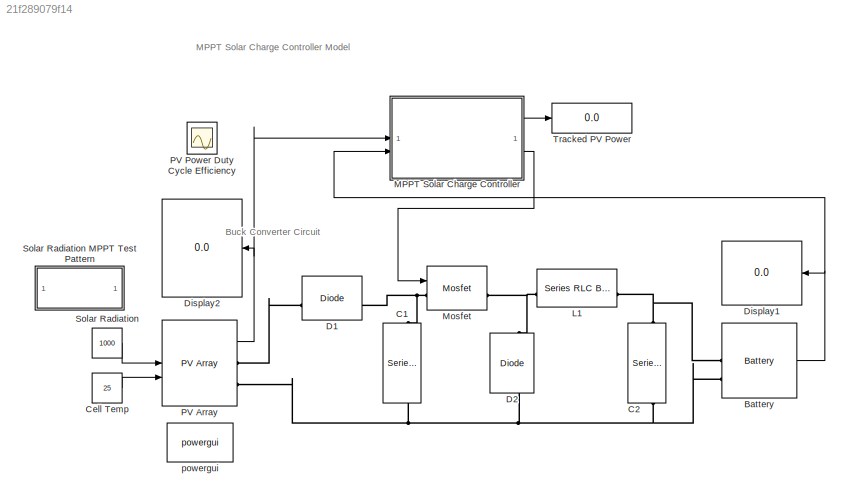
MODEL slx_21f289079f14
KIND model
CONFIG AbsTol = auto
CONFIG EnableMultiTasking = off
CONFIG FixedStep = 1
CONFIG MaxStep = auto
CONFIG MinStep = auto
CONFIG RelTol = 1e-3
CONFIG SampleTimeConstraint = Unconstrained
CONFIG SolverName = ode23tb
CONFIG StartTime = 0.0
CONFIG StopTime = 2
BLOCK [Reference]  C2  REF=spsSeriesRLCBranchLib/Series RLC Branch
  LibrarySourceBlock = sps_lib/Passives/Series RLC Branch
  NameLocation = left
  SourceBlock = spsSeriesRLCBranchLib/Series RLC Branch
  SourceType = Series RLC Branch
BLOCK [Reference] Battery  REF=spsBatteryLib/Battery
  LibrarySourceBlock = electricdrivelib/Extra Sources/Battery
  SourceBlock = spsBatteryLib/Battery
  SourceType = Battery
BLOCK [Reference] C1  REF=spsSeriesRLCBranchLib/Series RLC Branch
  LibrarySourceBlock = sps_lib/Passives/Series RLC Branch
  NameLocation = left
  SourceBlock = spsSeriesRLCBranchLib/Series RLC Branch
  SourceType = Series RLC Branch
BLOCK [Constant] Cell Temp
  Value = 25
BLOCK [Reference] D1  REF=spsDiodeLib/Diode
  LibrarySourceBlock = sps_lib/Power Electronics/Diode
  NameLocation = top
  SourceBlock = spsDiodeLib/Diode
  SourceType = Diode
BLOCK [Reference] D2  REF=spsDiodeLib/Diode
  LibrarySourceBlock = sps_lib/Power Electronics/Diode
  NameLocation = right
  SourceBlock = spsDiodeLib/Diode
  SourceType = Diode
BLOCK [Display] Display1
  Decimation = 1
BLOCK [Display] Display2
  Decimation = 1
BLOCK [Reference] L1  REF=spsSeriesRLCBranchLib/Series RLC Branch
  LibrarySourceBlock = sps_lib/Passives/Series RLC Branch
  NameLocation = top
  SourceBlock = spsSeriesRLCBranchLib/Series RLC Branch
  SourceType = Series RLC Branch
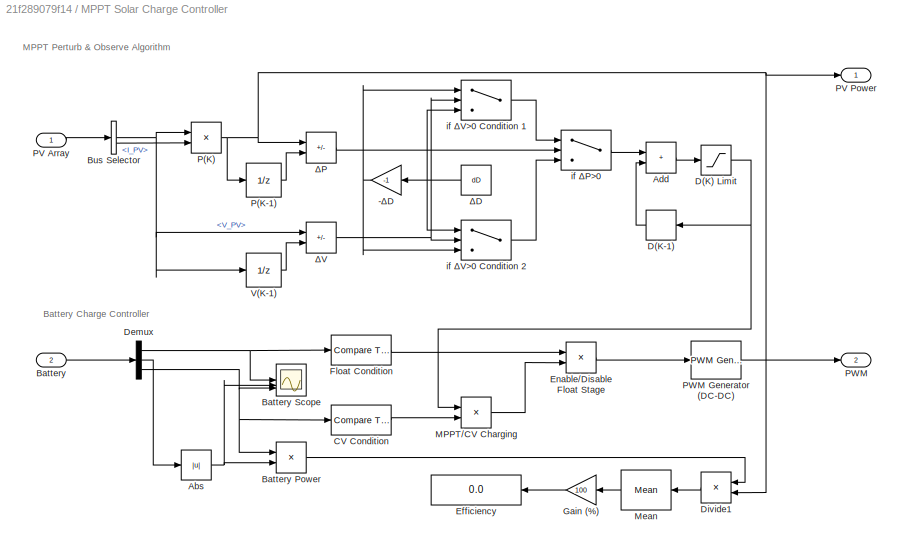
BLOCK [SubSystem] MPPT Solar Charge Controller
BLOCK [Gain] MPPT Solar Charge Controller/-∆D
  Gain = -1
BLOCK [Abs] MPPT Solar Charge Controller/Abs
  SaturateOnIntegerOverflow = off
BLOCK [Sum] MPPT Solar Charge Controller/Add
  IconShape = rectangular
BLOCK [Inport] MPPT Solar Charge Controller/Battery
  Port = 2
BLOCK [Product] MPPT Solar Charge Controller/Battery Power
BLOCK [Scope] MPPT Solar Charge Controller/Battery Scope
  Floating = off
  NumInputPorts = 3
  ScopeSpecificationString = Simulink.scopes.TimeScopeBlockCfg('CurrentConfiguration', extmgr.ConfigurationSet(extmgr.Configuration('Core','General UI',true),extmgr.Configuration('Core','Source UI',true),extmgr.Configuration('Sources','WiredSimulink',true,'DataLoggingVariableName','BatteryScope','DataLogging',true,'DataLoggingSaveFormat','Structure'),extmgr.Configuration('Visuals','Time Domain',true,'SerializedDisplays',{stru...<+2724ch>
BLOCK [BusSelector] MPPT Solar Charge Controller/Bus Selector
  OutputSignals = V_PV,I_PV
BLOCK [Reference] MPPT Solar Charge Controller/CV Condition  REF=simulink/Logic and Bit
Operations/Compare
To Constant
  SourceBlock = simulink/Logic and Bit\nOperations/Compare\nTo Constant
  SourceType = Compare To Constant
BLOCK [Saturate] MPPT Solar Charge Controller/D(K) Limit
  LowerLimit = 0.4
  UpperLimit = 0.6
BLOCK [Memory] MPPT Solar Charge Controller/D(K-1)
  InheritSampleTime = on
  InitialCondition = 0.5
  LinearizeAsDelay = on
  LinearizeMemory = on
BLOCK [Demux] MPPT Solar Charge Controller/Demux
  Outputs = 3
BLOCK [Product] MPPT Solar Charge Controller/Divide1
  Inputs = */
BLOCK [Display] MPPT Solar Charge Controller/Efficiency
  Decimation = 1
BLOCK [Product] MPPT Solar Charge Controller/Enable//Disable Float Stage
BLOCK [Reference] MPPT Solar Charge Controller/Float Condition  REF=simulink/Logic and Bit
Operations/Compare
To Constant
  SourceBlock = simulink/Logic and Bit\nOperations/Compare\nTo Constant
  SourceType = Compare To Constant
BLOCK [Gain] MPPT Solar Charge Controller/Gain (%)
  Gain = 100
BLOCK [Product] MPPT Solar Charge Controller/MPPT//CV Charging
BLOCK [Reference] MPPT Solar Charge Controller/Mean  REF=spsMeanLib/Mean
  LibrarySourceBlock = sps_lib/Sensors and Measurements/Mean
  SourceBlock = spsMeanLib/Mean
  SourceType = Mean
BLOCK [Product] MPPT Solar Charge Controller/P(K)
BLOCK [UnitDelay] MPPT Solar Charge Controller/P(K-1)
  HasFrameUpgradeWarning = on
  SampleTime = -1
BLOCK [Inport] MPPT Solar Charge Controller/PV Array
BLOCK [Outport] MPPT Solar Charge Controller/PV Power
  VectorParamsAs1DForOutWhenUnconnected = off
BLOCK [Outport] MPPT Solar Charge Controller/PWM
  Port = 2
  VectorParamsAs1DForOutWhenUnconnected = off
BLOCK [Reference] MPPT Solar Charge Controller/PWM Generator (DC-DC)  REF=spsPWMGeneratorDCDCLib/PWM Generator
(DC-DC)
  LibrarySourceBlock = sps_lib/Power Electronics/Power Electronics Control/PWM Generator\n(DC-DC)
  SourceBlock = spsPWMGeneratorDCDCLib/PWM Generator\n(DC-DC)
  SourceType = PWM Generator (DC-DC)
BLOCK [UnitDelay] MPPT Solar Charge Controller/V(K-1)
  HasFrameUpgradeWarning = on
  SampleTime = -1
BLOCK [Switch] MPPT Solar Charge Controller/if ∆P>0
  Criteria = u2 > Threshold
  InputSameDT = off
  SaturateOnIntegerOverflow = off
BLOCK [Switch] MPPT Solar Charge Controller/if ∆V>0 Condition 1
  Criteria = u2 > Threshold
  InputSameDT = off
  SaturateOnIntegerOverflow = off
BLOCK [Switch] MPPT Solar Charge Controller/if ∆V>0 Condition 2
  Criteria = u2 > Threshold
  InputSameDT = off
  SaturateOnIntegerOverflow = off
BLOCK [Constant] MPPT Solar Charge Controller/∆D
  Value = dD
BLOCK [Sum] MPPT Solar Charge Controller/∆P
  IconShape = rectangular
  Inputs = +-
BLOCK [Sum] MPPT Solar Charge Controller/∆V
  IconShape = rectangular
  Inputs = +-
BLOCK [Reference] Mosfet  REF=spsMosfetLib/Mosfet
  LibrarySourceBlock = sps_lib/Power Electronics/Mosfet
  SourceBlock = spsMosfetLib/Mosfet
  SourceType = Mosfet
BLOCK [Reference] PV Array  REF=spsPVArrayLib/PV Array
  LibrarySourceBlock = sps_lib/Sources/PV Array
  SourceBlock = spsPVArrayLib/PV Array
  SourceType = PV array
BLOCK [Scope] PV Power Duty Cycle Efficiency
  Floating = on
  NumInputPorts = 1
  ScopeSpecificationString = Simulink.scopes.TimeScopeBlockCfg('CurrentConfiguration', extmgr.ConfigurationSet(extmgr.Configuration('Core','General UI',true),extmgr.Configuration('Core','Source UI',true),extmgr.Configuration('Sources','WiredSimulink',true,'DataLoggingVariableName','ScopeData1'),extmgr.Configuration('Visuals','Time Domain',true,'SerializedDisplays',{struct('MinYLimReal','-248.342','MaxYLimReal','2254.85954','Y...<+2733ch>
BLOCK [Constant] Solar Radiation
  Value = 1000
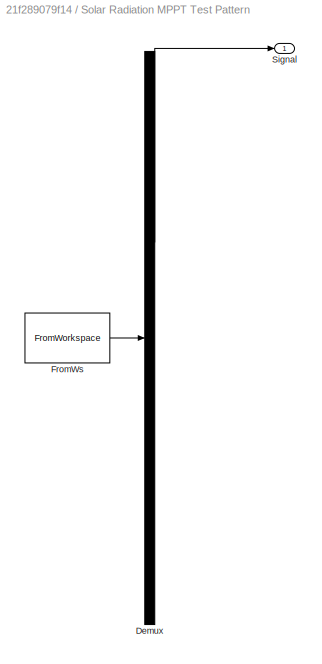
BLOCK [SubSystem] Solar Radiation MPPT Test Pattern
  ClipboardFcn = sigbuilder_block('clipboard');
  CloseFcn = sigbuilder_block('close');
  ContinueFcn = sigbuilder_block('continue');
  CopyFcn = sigbuilder_block('copy');
  DeleteFcn = sigbuilder_block('delete');
  LoadFcn = sigbuilder_block('load');
  MaskHideContents = on
  ModelCloseFcn = sigbuilder_block('modelClose');
  NameChangeFcn = sigbuilder_block('namechange');
  NameLocation = top
  OpenFcn = sigbuilder_block('open',[330.75 60 648.75 359.25 ]);
  PauseFcn = sigbuilder_block('pause');
  PreSaveFcn = sigbuilder_block('preSave');
  StartFcn = sigbuilder_block('start');
  StopFcn = sigbuilder_block('stop');
  Tag = STV Subsys
BLOCK [Demux] Solar Radiation MPPT Test Pattern/Demux
  DisplayOption = none
  Outputs = 1
  Tag = STV Demux
BLOCK [FromWorkspace] Solar Radiation MPPT Test Pattern/FromWs
  Tag = STV FromWs
  VariableName = tuvar
BLOCK [Outport] Solar Radiation MPPT Test Pattern/Signal
  Tag = STV Outport
  VectorParamsAs1DForOutWhenUnconnected = off
BLOCK [Display] Tracked PV Power
  Decimation = 1
BLOCK [Reference] powergui  REF=sps_lib/powergui
  Priority = 1
  SourceBlock = sps_lib/powergui
  SourceType = PSB option menu block
ANNOTATION (root): Buck Converter Circuit
ANNOTATION (root): MPPT Solar Charge Controller Model
ANNOTATION MPPT Solar Charge Controller: Battery Charge Controller
ANNOTATION MPPT Solar Charge Controller: MPPT Perturb & Observe Algorithm
NET Battery:1 -> Display1:1, MPPT Solar Charge Controller:2
LINE Cell Temp:1 -> PV Array:2
NET MPPT Solar Charge Controller/-∆D:1 -> MPPT Solar Charge Controller/if ∆V>0 Condition 1:1, MPPT Solar Charge Controller/if ∆V>0 Condition 2:3
NET MPPT Solar Charge Controller/Abs:1 -> MPPT Solar Charge Controller/Battery Power:2, MPPT Solar Charge Controller/Battery Scope:2
LINE MPPT Solar Charge Controller/Add:1 -> MPPT Solar Charge Controller/D(K) Limit:1
LINE MPPT Solar Charge Controller/Battery Power:1 -> MPPT Solar Charge Controller/Divide1:1
LINE MPPT Solar Charge Controller/Battery:1 -> MPPT Solar Charge Controller/Demux:1
NET MPPT Solar Charge Controller/Bus Selector:1 -> MPPT Solar Charge Controller/P(K):1, MPPT Solar Charge Controller/V(K-1):1, MPPT Solar Charge Controller/∆V:1
LINE MPPT Solar Charge Controller/Bus Selector:2 -> MPPT Solar Charge Controller/P(K):2
LINE MPPT Solar Charge Controller/CV Condition:1 -> MPPT Solar Charge Controller/MPPT//CV Charging:2
NET MPPT Solar Charge Controller/D(K) Limit:1 -> MPPT Solar Charge Controller/D(K-1):1, MPPT Solar Charge Controller/MPPT//CV Charging:1
LINE MPPT Solar Charge Controller/D(K-1):1 -> MPPT Solar Charge Controller/Add:2
NET MPPT Solar Charge Controller/Demux:1 -> MPPT Solar Charge Controller/Battery Scope:1, MPPT Solar Charge Controller/Float Condition:1
LINE MPPT Solar Charge Controller/Demux:2 -> MPPT Solar Charge Controller/Abs:1
NET MPPT Solar Charge Controller/Demux:3 -> MPPT Solar Charge Controller/Battery Power:1, MPPT Solar Charge Controller/Battery Scope:3, MPPT Solar Charge Controller/CV Condition:1
LINE MPPT Solar Charge Controller/Divide1:1 -> MPPT Solar Charge Controller/Mean:1
LINE MPPT Solar Charge Controller/Enable//Disable Float Stage:1 -> MPPT Solar Charge Controller/PWM Generator (DC-DC):1
LINE MPPT Solar Charge Controller/Float Condition:1 -> MPPT Solar Charge Controller/Enable//Disable Float Stage:1
LINE MPPT Solar Charge Controller/Gain (%):1 -> MPPT Solar Charge Controller/Efficiency:1
LINE MPPT Solar Charge Controller/MPPT//CV Charging:1 -> MPPT Solar Charge Controller/Enable//Disable Float Stage:2
LINE MPPT Solar Charge Controller/Mean:1 -> MPPT Solar Charge Controller/Gain (%):1
NET MPPT Solar Charge Controller/P(K):1 -> MPPT Solar Charge Controller/Divide1:2, MPPT Solar Charge Controller/P(K-1):1, MPPT Solar Charge Controller/PV Power:1, MPPT Solar Charge Controller/∆P:1
LINE MPPT Solar Charge Controller/P(K-1):1 -> MPPT Solar Charge Controller/∆P:2
LINE MPPT Solar Charge Controller/PV Array:1 -> MPPT Solar Charge Controller/Bus Selector:1
LINE MPPT Solar Charge Controller/PWM Generator (DC-DC):1 -> MPPT Solar Charge Controller/PWM:1
LINE MPPT Solar Charge Controller/V(K-1):1 -> MPPT Solar Charge Controller/∆V:2
LINE MPPT Solar Charge Controller/if ∆P>0:1 -> MPPT Solar Charge Controller/Add:1
LINE MPPT Solar Charge Controller/if ∆V>0 Condition 1:1 -> MPPT Solar Charge Controller/if ∆P>0:1
LINE MPPT Solar Charge Controller/if ∆V>0 Condition 2:1 -> MPPT Solar Charge Controller/if ∆P>0:3
NET MPPT Solar Charge Controller/∆D:1 -> MPPT Solar Charge Controller/-∆D:1, MPPT Solar Charge Controller/if ∆V>0 Condition 1:3, MPPT Solar Charge Controller/if ∆V>0 Condition 2:1
LINE MPPT Solar Charge Controller/∆P:1 -> MPPT Solar Charge Controller/if ∆P>0:2
NET MPPT Solar Charge Controller/∆V:1 -> MPPT Solar Charge Controller/if ∆V>0 Condition 1:2, MPPT Solar Charge Controller/if ∆V>0 Condition 2:2
LINE MPPT Solar Charge Controller:1 -> Tracked PV Power:1
LINE MPPT Solar Charge Controller:2 -> Mosfet:1
NET PV Array:1 -> Display2:1, MPPT Solar Charge Controller:1
LINE Solar Radiation:1 -> PV Array:1
PNET net1:  C2:LConn1 -- Battery:LConn1 -- L1:RConn1
PNET net2:  C2:RConn1 -- Battery:LConn2 -- C1:RConn1 -- D2:LConn1 -- PV Array:RConn2
PNET net3: C1:LConn1 -- D1:RConn1 -- Mosfet:LConn1
PLINE D1:LConn1 -- PV Array:RConn1
PNET net4: D2:RConn1 -- L1:LConn1 -- Mosfet:RConn1
note: NET lines group one-source signal fan-out (src -> all destinations, sorted); 1:1 wires keep LINE; PNET lines group multi-terminal physical nets as a canonical sorted terminal list (undirected conserving connections); 2-terminal nets keep the pairwise PLINE form
